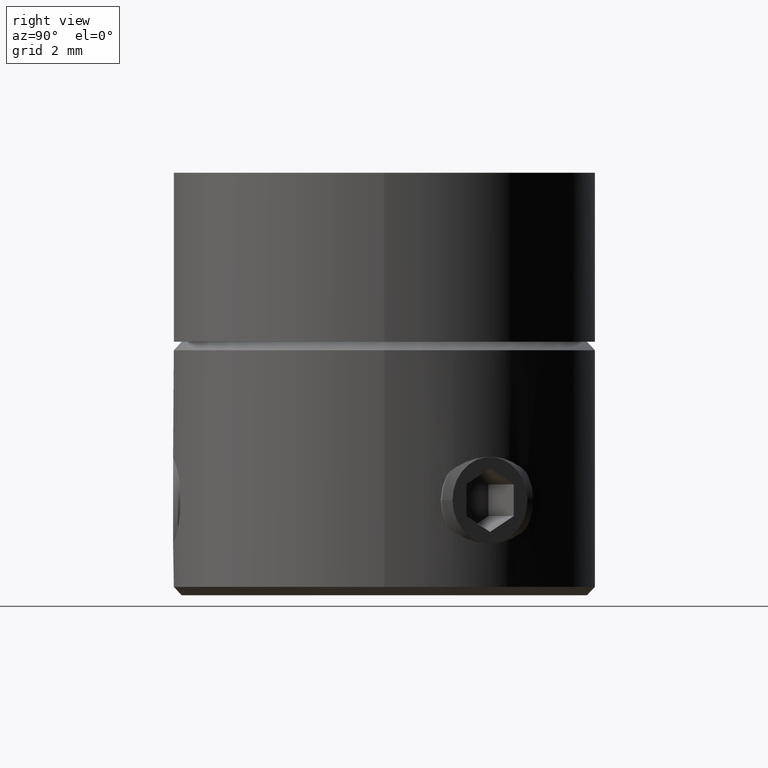
[diagram: clean part render]
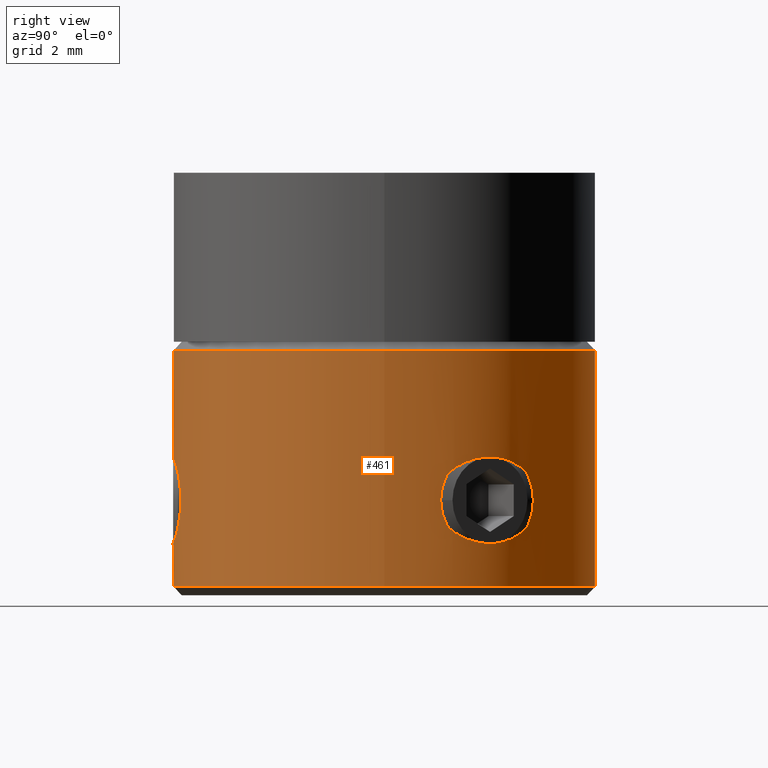
[diagram: same view with one face highlighted and labeled with its STEP entity id]
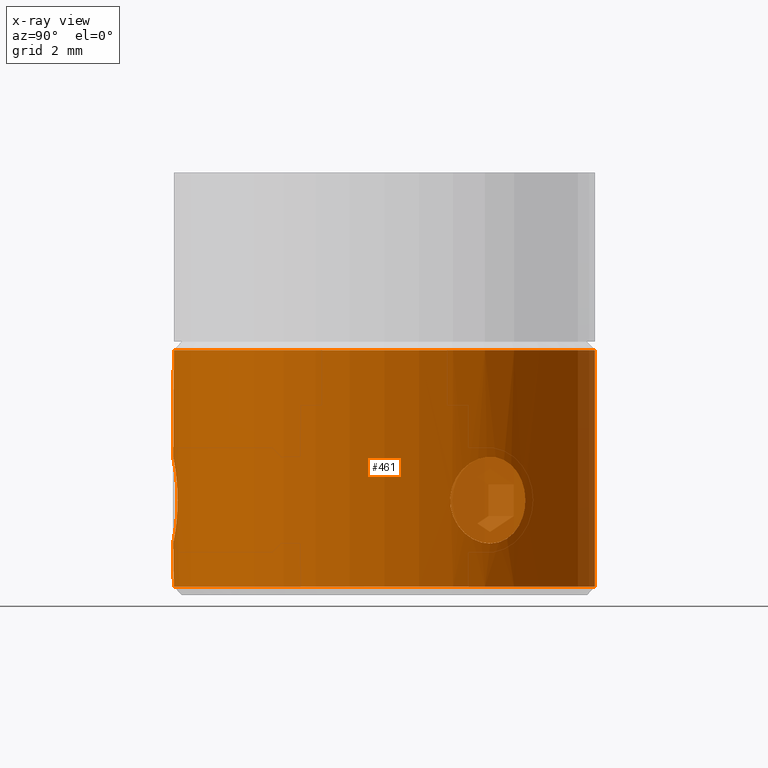
[diagram: x-ray of the same camera — body ghosted, the highlighted face saturated]
A machine part, right view. The second image highlights one B-rep face of the part: STEP entity #461.
The next image is the same camera in x-ray: the body ghosted, the highlighted face saturated — about 5% of this face is hidden behind the body in this view.
In plain terms, the highlighted cylindrical surface (bore or boss wall) has radius 5 mm, axis along (-0, 0, -1).
Its self-contained STEP definition (entity closure, byte-faithful):
#461 = ADVANCED_FACE( '', ( #500, #501, #502, #503 ), #504, .T. );
#500 = FACE_OUTER_BOUND( '', #585, .T. );
#501 = FACE_OUTER_BOUND( '', #586, .T. );
#502 = FACE_BOUND( '', #587, .T. );
#503 = FACE_BOUND( '', #588, .T. );
#504 = CYLINDRICAL_SURFACE( '', #589, 5.00000000000000 );
#585 = EDGE_LOOP( '', ( #670 ) );
#586 = EDGE_LOOP( '', ( #671 ) );
#587 = EDGE_LOOP( '', ( #672 ) );
#588 = EDGE_LOOP( '', ( #673 ) );
#589 = AXIS2_PLACEMENT_3D( '', #674, #675, #676 );
#670 = ORIENTED_EDGE( '', *, *, #828, .T. );
#671 = ORIENTED_EDGE( '', *, *, #829, .T. );
#672 = ORIENTED_EDGE( '', *, *, #830, .F. );
#673 = ORIENTED_EDGE( '', *, *, #831, .F. );
#674 = CARTESIAN_POINT( '', ( 0.000000000000000, 0.000000000000000, -6.00000000000000 ) );
#675 = DIRECTION( '', ( -0.000000000000000, 0.000000000000000, -1.00000000000000 ) );
#676 = DIRECTION( '', ( 1.00000000000000, 0.000000000000000, 0.000000000000000 ) );
#828 = EDGE_CURVE( '', #867, #867, #868, .F. );
#829 = EDGE_CURVE( '', #869, #869, #870, .T. );
#830 = EDGE_CURVE( '', #871, #871, #872, .T. );
#831 = EDGE_CURVE( '', #873, #873, #874, .T. );
#867 = VERTEX_POINT( '', #937 );
#868 = CIRCLE( '', #938, 5.00000000000000 );
#869 = VERTEX_POINT( '', #939 );
#870 = CIRCLE( '', #940, 5.00000000000000 );
#871 = VERTEX_POINT( '', #941 );
#872 = B_SPLINE_CURVE_WITH_KNOTS( '', 3, ( #942, #943, #944, #945, #946, #947, #948, #949, #950, #951, #952, #953, #954, #955, #956, #957, #958, #959, #960, #961, #962, #963, #964, #965, #966, #967, #968, #969, #970, #971, #972, #973, #974, #975 ), .UNSPECIFIED., .T., .F., ( 2, 2, 2, 2, 2, 2, 2, 2, 2, 2, 2, 2, 2, 2, 2, 2, 2, 2, 2 ), ( -0.000401589831292371, 0.000000000000000, 0.000401589831292371, 0.000803179662584743, 0.00120476949387711, 0.00160635932516949, 0.00200794915646186, 0.00240953898775423, 0.00281112881904660, 0.00321271865033897, 0.00361430848163134, 0.00401589831292371, 0.00441748814421608, 0.00481907797550846, 0.00522066780680083, 0.00562225763809320, 0.00602384746938557, 0.00642543730067794, 0.00682702713197031 ), .UNSPECIFIED. );
#873 = VERTEX_POINT( '', #976 );
#874 = B_SPLINE_CURVE_WITH_KNOTS( '', 3, ( #977, #978, #979, #980, #981, #982, #983, #984, #985, #986, #987, #988, #989, #990, #991, #992, #993, #994, #995, #996, #997, #998, #999, #1000, #1001, #1002, #1003, #1004, #1005, #1006, #1007, #1008, #1009, #1010 ), .UNSPECIFIED., .T., .F., ( 2, 2, 2, 2, 2, 2, 2, 2, 2, 2, 2, 2, 2, 2, 2, 2, 2, 2, 2 ), ( -0.000401589831292372, 0.000000000000000, 0.000401589831292370, 0.000803179662584740, 0.00120476949387711, 0.00160635932516948, 0.00200794915646185, 0.00240953898775422, 0.00281112881904659, 0.00321271865033897, 0.00361430848163134, 0.00401589831292371, 0.00441748814421608, 0.00481907797550845, 0.00522066780680082, 0.00562225763809319, 0.00602384746938556, 0.00642543730067793, 0.00682702713197030 ), .UNSPECIFIED. );
#937 = CARTESIAN_POINT( '', ( 5.00000000000000, 0.000000000000000, -0.200000000000000 ) );
#938 = AXIS2_PLACEMENT_3D( '', #1161, #1162, #1163 );
#939 = CARTESIAN_POINT( '', ( 5.00000000000000, 0.000000000000000, -5.80000000000000 ) );
#940 = AXIS2_PLACEMENT_3D( '', #1164, #1165, #1166 );
#941 = CARTESIAN_POINT( '', ( 1.02500000000000, -4.89380986553421, -3.75000000000000 ) );
#942 = CARTESIAN_POINT( '', ( 1.02500000000000, -4.89380986553422, -3.88581963071255 ) );
#943 = CARTESIAN_POINT( '', ( 1.02500000000000, -4.89380986553421, -3.61418036928745 ) );
#944 = CARTESIAN_POINT( '', ( 0.998131609087927, -4.89964130085974, -3.48093545341118 ) );
#945 = CARTESIAN_POINT( '', ( 0.895117853207788, -4.91950359437003, -3.23286706915902 ) );
#946 = CARTESIAN_POINT( '', ( 0.818984583281108, -4.93339080108986, -3.11939344600029 ) );
#947 = CARTESIAN_POINT( '', ( 0.630413280851084, -4.96101397289473, -2.93086663544568 ) );
#948 = CARTESIAN_POINT( '', ( 0.516346902429581, -4.97480380103731, -2.85455425937991 ) );
#949 = CARTESIAN_POINT( '', ( 0.269831204822678, -4.99424449775617, -2.75218823471196 ) );
#950 = CARTESIAN_POINT( '', ( 0.134701350345149, -4.99998360540130, -2.72507997366577 ) );
#951 = CARTESIAN_POINT( '', ( -0.133481481312452, -5.00001632019468, -2.72492038928071 ) );
#952 = CARTESIAN_POINT( '', ( -0.267977124985319, -4.99437090162514, -2.75153982074097 ) );
#953 = CARTESIAN_POINT( '', ( -0.516627088528960, -4.97480139240889, -2.85454987828497 ) );
#954 = CARTESIAN_POINT( '', ( -0.629402654845152, -4.96116119094302, -2.92986727074942 ) );
#955 = CARTESIAN_POINT( '', ( -0.819911318508841, -4.93325587155444, -3.12030894456470 ) );
#956 = CARTESIAN_POINT( '', ( -0.895252430158152, -4.91947812317468, -3.23315208796639 ) );
#957 = CARTESIAN_POINT( '', ( -0.998084873353715, -4.89964983480257, -3.48086199922702 ) );
#958 = CARTESIAN_POINT( '', ( -1.02494510856790, -4.89382136244859, -3.61560661949185 ) );
#959 = CARTESIAN_POINT( '', ( -1.02505471990481, -4.89379840454593, -3.88355477341730 ) );
#960 = CARTESIAN_POINT( '', ( -0.998112380038498, -4.89964100241192, -4.01878176110255 ) );
#961 = CARTESIAN_POINT( '', ( -0.895876322282462, -4.91936132957072, -4.26563317723083 ) );
#962 = CARTESIAN_POINT( '', ( -0.819836064601880, -4.93325174204001, -4.37956356174130 ) );
#963 = CARTESIAN_POINT( '', ( -0.631026261417954, -4.96093839717483, -4.56871075997276 ) );
#964 = CARTESIAN_POINT( '', ( -0.518162541070894, -4.97464342864445, -4.64458629568961 ) );
#965 = CARTESIAN_POINT( '', ( -0.269380754917139, -4.99429711471041, -4.74810373623435 ) );
#966 = CARTESIAN_POINT( '', ( -0.136052597510098, -4.99998094139475, -4.77490703117302 ) );
#967 = CARTESIAN_POINT( '', ( 0.134648146771082, -5.00001895998116, -4.77509248773379 ) );
#968 = CARTESIAN_POINT( '', ( 0.268513129233886, -4.99432980805346, -4.74824481565225 ) );
#969 = CARTESIAN_POINT( '', ( 0.516178437654650, -4.97483561061897, -4.64562929443379 ) );
#970 = CARTESIAN_POINT( '', ( 0.630004442519759, -4.96106557039116, -4.56943142249435 ) );
#971 = CARTESIAN_POINT( '', ( 0.818543302872061, -4.93346369730623, -4.38115791612643 ) );
#972 = CARTESIAN_POINT( '', ( 0.894984971531682, -4.91952563193637, -4.26716040600205 ) );
#973 = CARTESIAN_POINT( '', ( 0.997605384524334, -4.89974632397582, -4.02062239665599 ) );
#974 = CARTESIAN_POINT( '', ( 1.02500000000000, -4.89380986553422, -3.88581963071255 ) );
#975 = CARTESIAN_POINT( '', ( 1.02500000000000, -4.89380986553421, -3.61418036928745 ) );
#976 = CARTESIAN_POINT( '', ( 3.72566366484354, 3.33458097164616, -3.75000000000000 ) );
#977 = CARTESIAN_POINT( '', ( 3.72566366484354, 3.33458097164616, -3.88581963071255 ) );
#978 = CARTESIAN_POINT( '', ( 3.72566366484354, 3.33458097164616, -3.61418036928745 ) );
#979 = CARTESIAN_POINT( '', ( 3.74414803143201, 3.31422798022025, -3.48093545341118 ) );
#980 = CARTESIAN_POINT( '', ( 3.81285616012941, 3.23494659744395, -3.23286706915902 ) );
#981 = CARTESIAN_POINT( '', ( 3.86294946889973, 3.17595685497418, -3.11939344600030 ) );
#982 = CARTESIAN_POINT( '', ( 3.98115748863086, 3.02646090254750, -2.93086663544568 ) );
#983 = CARTESIAN_POINT( '', ( 4.05013301932690, 2.93457143518808, -2.85455425937991 ) );
#984 = CARTESIAN_POINT( '', ( 4.19022700535616, 2.73080292698829, -2.75218823471196 ) );
#985 = CARTESIAN_POINT( '', ( 4.26276214561066, 2.61664659402362, -2.72507997366577 ) );
#986 = CARTESIAN_POINT( '', ( 4.39688189328161, 2.38440980634598, -2.72492038928071 ) );
#987 = CARTESIAN_POINT( '', ( 4.45924063922182, 2.26511045294217, -2.75153982074097 ) );
#988 = CARTESIAN_POINT( '', ( 4.56661792887278, 2.03998851325517, -2.85454987828497 ) );
#989 = CARTESIAN_POINT( '', ( 4.61119295104869, 1.93550190716624, -2.92986727074942 ) );
#990 = CARTESIAN_POINT( '', ( 4.68228056738931, 1.75656390509817, -3.12030894456470 ) );
#991 = CARTESIAN_POINT( '', ( 4.70801924311014, 1.68442771427063, -3.23315208796639 ) );
#992 = CARTESIAN_POINT( '', ( 4.74226366326411, 1.58545806194399, -3.48086199922702 ) );
#993 = CARTESIAN_POINT( '', ( 4.75064617574740, 1.55928217971989, -3.61560661949185 ) );
#994 = CARTESIAN_POINT( '', ( 4.75068109928894, 1.55917577456626, -3.88355477341730 ) );
#995 = CARTESIAN_POINT( '', ( 4.74226976753182, 1.58542982426087, -4.01878176110255 ) );
#996 = CARTESIAN_POINT( '', ( 4.70823004294427, 1.68382901103977, -4.26563317723083 ) );
#997 = CARTESIAN_POINT( '', ( 4.68223936417143, 1.75662701213612, -4.37956356174130 ) );
#998 = CARTESIAN_POINT( '', ( 4.61181180927204, 1.93398442574435, -4.56871075997276 ) );
#999 = CARTESIAN_POINT( '', ( 4.56724885451086, 2.03857979046533, -4.64458629568961 ) );
#1000 = CARTESIAN_POINT( '', ( 4.45987855284511, 2.26385798030633, -4.74810373623435 ) );
#1001 = CARTESIAN_POINT( '', ( 4.39813681244093, 2.38216546500277, -4.77490703117302 ) );
#1002 = CARTESIAN_POINT( '', ( 4.26281936536199, 2.61661819566683, -4.77509248773379 ) );
#1003 = CARTESIAN_POINT( '', ( 4.19095992403521, 2.72970409519293, -4.74824481565225 ) );
#1004 = CARTESIAN_POINT( '', ( 4.05024479962017, 2.93444144520417, -4.64562929443379 ) );
#1005 = CARTESIAN_POINT( '', ( 3.98140659253920, 3.02613263691475, -4.56943142249435 ) );
#1006 = CARTESIAN_POINT( '', ( 3.86323323907947, 3.17561114303794, -4.38115791612643 ) );
#1007 = CARTESIAN_POINT( '', ( 3.81294168605975, 3.23484253731991, -4.26716040600205 ) );
#1008 = CARTESIAN_POINT( '', ( 3.74450209640032, 3.31382476793813, -4.02062239665599 ) );
#1009 = CARTESIAN_POINT( '', ( 3.72566366484354, 3.33458097164616, -3.88581963071255 ) );
#1010 = CARTESIAN_POINT( '', ( 3.72566366484354, 3.33458097164616, -3.61418036928745 ) );
#1161 = CARTESIAN_POINT( '', ( 0.000000000000000, 0.000000000000000, -0.200000000000000 ) );
#1162 = DIRECTION( '', ( 0.000000000000000, -0.000000000000000, 1.00000000000000 ) );
#1163 = DIRECTION( '', ( 1.00000000000000, 0.000000000000000, 0.000000000000000 ) );
#1164 = CARTESIAN_POINT( '', ( 0.000000000000000, 0.000000000000000, -5.80000000000000 ) );
#1165 = DIRECTION( '', ( 0.000000000000000, -0.000000000000000, 1.00000000000000 ) );
#1166 = DIRECTION( '', ( 1.00000000000000, 0.000000000000000, 0.000000000000000 ) );